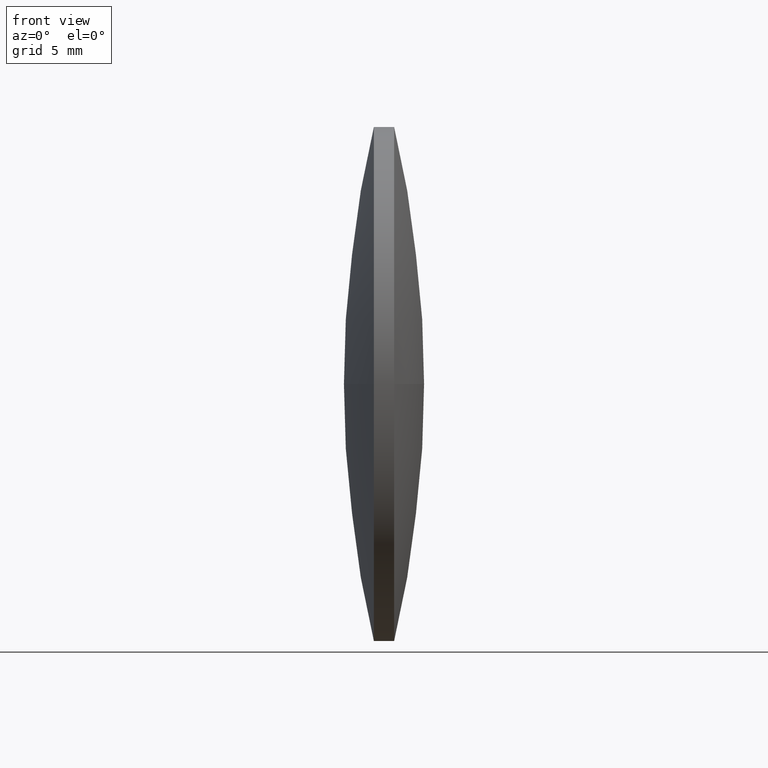
[diagram: clean part render]
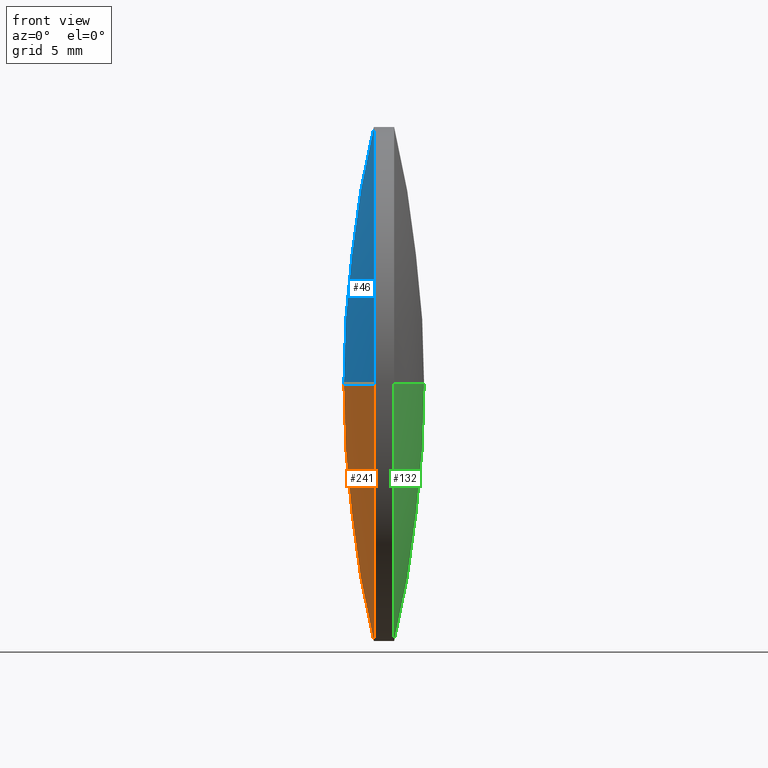
[diagram: same view with three faces highlighted in distinct colors, each labeled with its STEP entity id]
A machine part, front view with three faces highlighted in distinct colors.
Their STEP definitions:

[orange] entity #241 — the highlighted spherical surface has radius 55.2311 mm.
#2 = DIRECTION ( 'NONE',  ( 1.000000000000000000, 0.0000000000000000000, 0.0000000000000000000 ) ) ;
#7 = DIRECTION ( 'NONE',  ( 0.0000000000000000000, 1.224646799147353200E-016, -1.000000000000000000 ) ) ;
#10 = CARTESIAN_POINT ( 'NONE',  ( 139.7092804807324700, 48.61611302318473100, 0.0000000000000000000 ) ) ;
#14 = CIRCLE ( 'NONE', #263, 55.23105299178421000 ) ;
#17 = AXIS2_PLACEMENT_3D ( 'NONE', #175, #64, #303 ) ;
#31 = DIRECTION ( 'NONE',  ( -0.0000000000000000000, 0.0000000000000000000, -1.000000000000000000 ) ) ;
#33 = CARTESIAN_POINT ( 'NONE',  ( 139.7092804807324700, 48.61611302318473100, 0.0000000000000000000 ) ) ;
#40 = CARTESIAN_POINT ( 'NONE',  ( 85.95819477466253000, 48.61611302318478100, 0.0000000000000000000 ) ) ;
#41 = CIRCLE ( 'NONE', #92, 55.23105299178420300 ) ;
#48 = VERTEX_POINT ( 'NONE', #247 ) ;
#62 = DIRECTION ( 'NONE',  ( -0.0000000000000000000, 0.0000000000000000000, 1.000000000000000000 ) ) ;
#63 = CARTESIAN_POINT ( 'NONE',  ( 84.47822748894826400, 48.61611302318473100, 0.0000000000000000000 ) ) ;
#64 = DIRECTION ( 'NONE',  ( -1.000000000000000000, -0.0000000000000000000, -0.0000000000000000000 ) ) ;
#65 = ORIENTED_EDGE ( 'NONE', *, *, #245, .T. ) ;
#81 = CIRCLE ( 'NONE', #17, 12.69999999999999600 ) ;
#86 = FACE_OUTER_BOUND ( 'NONE', #331, .T. ) ;
#92 = AXIS2_PLACEMENT_3D ( 'NONE', #10, #7, #117 ) ;
#95 = ORIENTED_EDGE ( 'NONE', *, *, #290, .T. ) ;
#101 = SPHERICAL_SURFACE ( 'NONE', #106, 55.23105299178421000 ) ;
#106 = AXIS2_PLACEMENT_3D ( 'NONE', #33, #31, #223 ) ;
#117 = DIRECTION ( 'NONE',  ( 0.0000000000000000000, 1.000000000000000000, 1.224646799147353500E-016 ) ) ;
#120 = DIRECTION ( 'NONE',  ( -1.000000000000000000, -0.0000000000000000000, -0.0000000000000000000 ) ) ;
#124 = ORIENTED_EDGE ( 'NONE', *, *, #189, .F. ) ;
#137 = CARTESIAN_POINT ( 'NONE',  ( 139.7092804807324700, 48.61611302318473100, 0.0000000000000000000 ) ) ;
#162 = CARTESIAN_POINT ( 'NONE',  ( 85.95819477466253000, 35.91611302318475700, -1.555301434917134100E-015 ) ) ;
#175 = CARTESIAN_POINT ( 'NONE',  ( 85.95819477466253000, 48.61611302318478100, 0.0000000000000000000 ) ) ;
#185 = VERTEX_POINT ( 'NONE', #196 ) ;
#189 = EDGE_CURVE ( 'NONE', #48, #292, #14, .T. ) ;
#196 = CARTESIAN_POINT ( 'NONE',  ( 85.95819477466253000, 48.61611302318478100, -12.69999999999999600 ) ) ;
#200 = VERTEX_POINT ( 'NONE', #162 ) ;
#223 = DIRECTION ( 'NONE',  ( 0.0000000000000000000, 1.000000000000000000, 0.0000000000000000000 ) ) ;
#237 = CIRCLE ( 'NONE', #339, 12.69999999999999600 ) ;
#241 = ADVANCED_FACE ( 'NONE', ( #86 ), #101, .T. ) ;
#245 = EDGE_CURVE ( 'NONE', #200, #292, #41, .T. ) ;
#247 = CARTESIAN_POINT ( 'NONE',  ( 85.95819477466253000, 61.31611302318474800, 0.0000000000000000000 ) ) ;
#257 = ORIENTED_EDGE ( 'NONE', *, *, #298, .T. ) ;
#260 = DIRECTION ( 'NONE',  ( 0.0000000000000000000, 0.0000000000000000000, 1.000000000000000000 ) ) ;
#263 = AXIS2_PLACEMENT_3D ( 'NONE', #137, #62, #2 ) ;
#290 = EDGE_CURVE ( 'NONE', #48, #185, #81, .T. ) ;
#292 = VERTEX_POINT ( 'NONE', #63 ) ;
#298 = EDGE_CURVE ( 'NONE', #185, #200, #237, .T. ) ;
#303 = DIRECTION ( 'NONE',  ( 0.0000000000000000000, 0.0000000000000000000, 1.000000000000000000 ) ) ;
#331 = EDGE_LOOP ( 'NONE', ( #95, #257, #65, #124 ) ) ;
#339 = AXIS2_PLACEMENT_3D ( 'NONE', #40, #120, #260 ) ;

[blue] entity #46 — the highlighted spherical surface has radius 55.2311 mm.
#2 = DIRECTION ( 'NONE',  ( 1.000000000000000000, 0.0000000000000000000, 0.0000000000000000000 ) ) ;
#7 = DIRECTION ( 'NONE',  ( 0.0000000000000000000, 1.224646799147353200E-016, -1.000000000000000000 ) ) ;
#8 = AXIS2_PLACEMENT_3D ( 'NONE', #105, #268, #133 ) ;
#10 = CARTESIAN_POINT ( 'NONE',  ( 139.7092804807324700, 48.61611302318473100, 0.0000000000000000000 ) ) ;
#14 = CIRCLE ( 'NONE', #263, 55.23105299178421000 ) ;
#41 = CIRCLE ( 'NONE', #92, 55.23105299178420300 ) ;
#46 = ADVANCED_FACE ( 'NONE', ( #308 ), #244, .T. ) ;
#48 = VERTEX_POINT ( 'NONE', #247 ) ;
#59 = VERTEX_POINT ( 'NONE', #160 ) ;
#62 = DIRECTION ( 'NONE',  ( -0.0000000000000000000, 0.0000000000000000000, 1.000000000000000000 ) ) ;
#63 = CARTESIAN_POINT ( 'NONE',  ( 84.47822748894826400, 48.61611302318473100, 0.0000000000000000000 ) ) ;
#84 = CIRCLE ( 'NONE', #138, 12.69999999999999600 ) ;
#88 = CARTESIAN_POINT ( 'NONE',  ( 85.95819477466253000, 48.61611302318478100, 0.0000000000000000000 ) ) ;
#92 = AXIS2_PLACEMENT_3D ( 'NONE', #10, #7, #117 ) ;
#105 = CARTESIAN_POINT ( 'NONE',  ( 139.7092804807324700, 48.61611302318473100, 0.0000000000000000000 ) ) ;
#117 = DIRECTION ( 'NONE',  ( 0.0000000000000000000, 1.000000000000000000, 1.224646799147353500E-016 ) ) ;
#126 = ORIENTED_EDGE ( 'NONE', *, *, #269, .T. ) ;
#133 = DIRECTION ( 'NONE',  ( 0.0000000000000000000, 1.000000000000000000, 0.0000000000000000000 ) ) ;
#137 = CARTESIAN_POINT ( 'NONE',  ( 139.7092804807324700, 48.61611302318473100, 0.0000000000000000000 ) ) ;
#138 = AXIS2_PLACEMENT_3D ( 'NONE', #88, #277, #274 ) ;
#157 = EDGE_LOOP ( 'NONE', ( #252, #264, #126, #287 ) ) ;
#160 = CARTESIAN_POINT ( 'NONE',  ( 85.95819477466253000, 48.61611302318478100, 12.69999999999999600 ) ) ;
#162 = CARTESIAN_POINT ( 'NONE',  ( 85.95819477466253000, 35.91611302318475700, -1.555301434917134100E-015 ) ) ;
#189 = EDGE_CURVE ( 'NONE', #48, #292, #14, .T. ) ;
#200 = VERTEX_POINT ( 'NONE', #162 ) ;
#211 = EDGE_CURVE ( 'NONE', #200, #59, #248, .T. ) ;
#222 = CARTESIAN_POINT ( 'NONE',  ( 85.95819477466253000, 48.61611302318478100, 0.0000000000000000000 ) ) ;
#224 = DIRECTION ( 'NONE',  ( -1.000000000000000000, -0.0000000000000000000, -0.0000000000000000000 ) ) ;
#244 = SPHERICAL_SURFACE ( 'NONE', #8, 55.23105299178421000 ) ;
#245 = EDGE_CURVE ( 'NONE', #200, #292, #41, .T. ) ;
#247 = CARTESIAN_POINT ( 'NONE',  ( 85.95819477466253000, 61.31611302318474800, 0.0000000000000000000 ) ) ;
#248 = CIRCLE ( 'NONE', #344, 12.69999999999999600 ) ;
#252 = ORIENTED_EDGE ( 'NONE', *, *, #245, .F. ) ;
#263 = AXIS2_PLACEMENT_3D ( 'NONE', #137, #62, #2 ) ;
#264 = ORIENTED_EDGE ( 'NONE', *, *, #211, .T. ) ;
#268 = DIRECTION ( 'NONE',  ( -0.0000000000000000000, 0.0000000000000000000, -1.000000000000000000 ) ) ;
#269 = EDGE_CURVE ( 'NONE', #59, #48, #84, .T. ) ;
#274 = DIRECTION ( 'NONE',  ( 0.0000000000000000000, 0.0000000000000000000, 1.000000000000000000 ) ) ;
#277 = DIRECTION ( 'NONE',  ( -1.000000000000000000, -0.0000000000000000000, -0.0000000000000000000 ) ) ;
#287 = ORIENTED_EDGE ( 'NONE', *, *, #189, .T. ) ;
#292 = VERTEX_POINT ( 'NONE', #63 ) ;
#308 = FACE_OUTER_BOUND ( 'NONE', #157, .T. ) ;
#325 = DIRECTION ( 'NONE',  ( 0.0000000000000000000, 0.0000000000000000000, 1.000000000000000000 ) ) ;
#344 = AXIS2_PLACEMENT_3D ( 'NONE', #222, #224, #325 ) ;

[green] entity #132 — the highlighted spherical surface has radius 55.2311 mm.
#3 = DIRECTION ( 'NONE',  ( 0.0000000000000000000, 0.0000000000000000000, 1.000000000000000000 ) ) ;
#20 = ORIENTED_EDGE ( 'NONE', *, *, #265, .F. ) ;
#23 = AXIS2_PLACEMENT_3D ( 'NONE', #29, #28, #314 ) ;
#27 = AXIS2_PLACEMENT_3D ( 'NONE', #192, #32, #114 ) ;
#28 = DIRECTION ( 'NONE',  ( 0.0000000000000000000, 0.0000000000000000000, 1.000000000000000000 ) ) ;
#29 = CARTESIAN_POINT ( 'NONE',  ( 33.20710706859297500, 48.61611302318480200, 0.0000000000000000000 ) ) ;
#32 = DIRECTION ( 'NONE',  ( -1.000000000000000000, -0.0000000000000000000, -0.0000000000000000000 ) ) ;
#37 = AXIS2_PLACEMENT_3D ( 'NONE', #251, #89, #3 ) ;
#42 = FACE_OUTER_BOUND ( 'NONE', #315, .T. ) ;
#53 = VERTEX_POINT ( 'NONE', #215 ) ;
#56 = CARTESIAN_POINT ( 'NONE',  ( 33.20710706859297500, 48.61611302318480200, 0.0000000000000000000 ) ) ;
#60 = DIRECTION ( 'NONE',  ( 0.0000000000000000000, 0.0000000000000000000, -1.000000000000000000 ) ) ;
#69 = CARTESIAN_POINT ( 'NONE',  ( 86.95819277466255000, 48.61611302318478100, -12.69999999999999600 ) ) ;
#71 = VERTEX_POINT ( 'NONE', #318 ) ;
#89 = DIRECTION ( 'NONE',  ( -1.000000000000000000, -0.0000000000000000000, -0.0000000000000000000 ) ) ;
#99 = CIRCLE ( 'NONE', #125, 55.23105299178385500 ) ;
#102 = VERTEX_POINT ( 'NONE', #221 ) ;
#109 = CIRCLE ( 'NONE', #37, 12.69999999999999600 ) ;
#111 = CARTESIAN_POINT ( 'NONE',  ( 33.20710706859297500, 48.61611302318480200, 0.0000000000000000000 ) ) ;
#114 = DIRECTION ( 'NONE',  ( 0.0000000000000000000, 0.0000000000000000000, 1.000000000000000000 ) ) ;
#119 = ORIENTED_EDGE ( 'NONE', *, *, #219, .F. ) ;
#125 = AXIS2_PLACEMENT_3D ( 'NONE', #111, #169, #227 ) ;
#132 = ADVANCED_FACE ( 'NONE', ( #42 ), #340, .T. ) ;
#144 = AXIS2_PLACEMENT_3D ( 'NONE', #56, #60, #225 ) ;
#150 = CIRCLE ( 'NONE', #144, 55.23105299178385500 ) ;
#169 = DIRECTION ( 'NONE',  ( 0.0000000000000000000, -1.224646799147353200E-016, 1.000000000000000000 ) ) ;
#174 = ORIENTED_EDGE ( 'NONE', *, *, #286, .F. ) ;
#186 = EDGE_CURVE ( 'NONE', #102, #71, #150, .T. ) ;
#192 = CARTESIAN_POINT ( 'NONE',  ( 86.95819277466255000, 48.61611302318478100, 0.0000000000000000000 ) ) ;
#205 = ORIENTED_EDGE ( 'NONE', *, *, #186, .T. ) ;
#215 = CARTESIAN_POINT ( 'NONE',  ( 86.95819277466255000, 61.31611302318478400, 1.555301434917136300E-015 ) ) ;
#219 = EDGE_CURVE ( 'NONE', #53, #295, #109, .T. ) ;
#221 = CARTESIAN_POINT ( 'NONE',  ( 88.43816006037683100, 48.61611302318480200, 0.0000000000000000000 ) ) ;
#225 = DIRECTION ( 'NONE',  ( -1.000000000000000000, 0.0000000000000000000, 0.0000000000000000000 ) ) ;
#227 = DIRECTION ( 'NONE',  ( 0.0000000000000000000, -1.000000000000000000, -1.224646799147353000E-016 ) ) ;
#251 = CARTESIAN_POINT ( 'NONE',  ( 86.95819277466255000, 48.61611302318478100, 0.0000000000000000000 ) ) ;
#265 = EDGE_CURVE ( 'NONE', #102, #53, #99, .T. ) ;
#286 = EDGE_CURVE ( 'NONE', #295, #71, #301, .T. ) ;
#295 = VERTEX_POINT ( 'NONE', #69 ) ;
#301 = CIRCLE ( 'NONE', #27, 12.69999999999999600 ) ;
#314 = DIRECTION ( 'NONE',  ( 0.0000000000000000000, -1.000000000000000000, 0.0000000000000000000 ) ) ;
#315 = EDGE_LOOP ( 'NONE', ( #20, #205, #174, #119 ) ) ;
#318 = CARTESIAN_POINT ( 'NONE',  ( 86.95819277466255000, 35.91611302318479900, 0.0000000000000000000 ) ) ;
#340 = SPHERICAL_SURFACE ( 'NONE', #23, 55.23105299178385500 ) ;